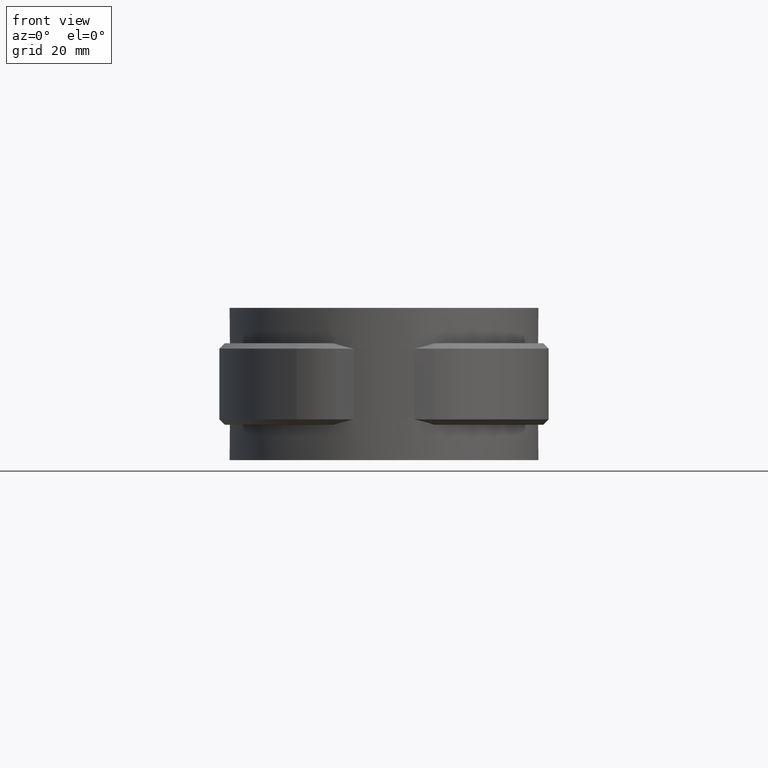
[diagram: clean part render]
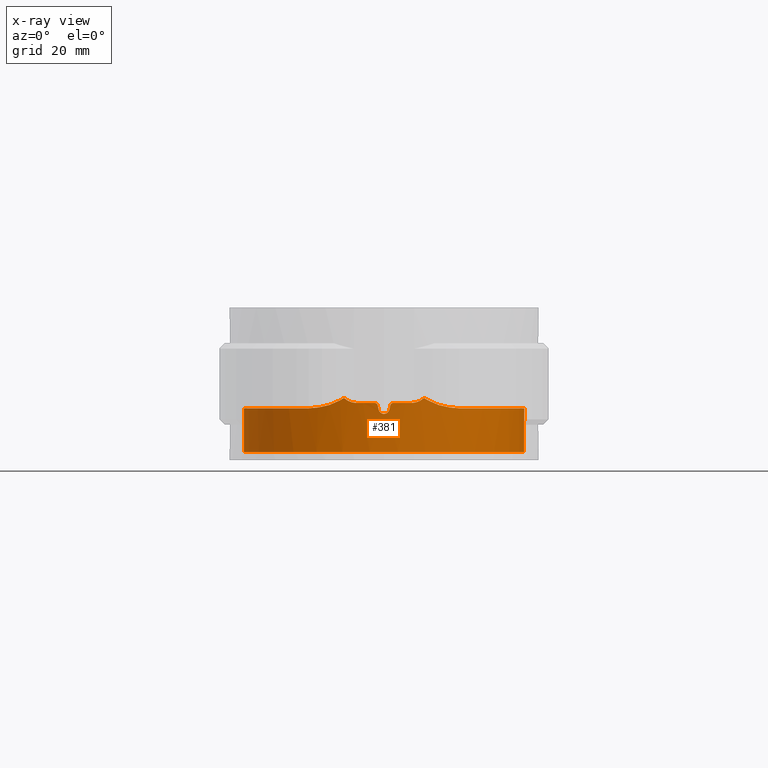
[diagram: x-ray — body ghosted, one internal face saturated and labeled with its STEP entity id]
A machine part, front view, then the same camera in x-ray: the body is ghosted and one INTERNAL B-rep face — a face not visible from any outside direction — is saturated and labeled: STEP entity #381.
In plain terms, the highlighted cylindrical surface (partial cylindrical patch) has radius 25.8 mm, axis along (0, 0, -1).
Its self-contained STEP definition (entity closure, byte-faithful):
#381 = ADVANCED_FACE( '', ( #757 ), #758, .F. );
#757 = FACE_OUTER_BOUND( '', #1569, .T. );
#758 = CYLINDRICAL_SURFACE( '', #1570, 25.8000000000000 );
#1569 = EDGE_LOOP( '', ( #3423, #3424, #3425, #3426, #3427, #3428, #3429, #3430, #3431, #3432, #3433, #3434, #3435, #3436, #3437, #3438, #3439, #3440 ) );
#1570 = AXIS2_PLACEMENT_3D( '', #3441, #3442, #3443 );
#3423 = ORIENTED_EDGE( '', *, *, #7726, .T. );
#3424 = ORIENTED_EDGE( '', *, *, #7694, .T. );
#3425 = ORIENTED_EDGE( '', *, *, #7731, .T. );
#3426 = ORIENTED_EDGE( '', *, *, #7732, .T. );
#3427 = ORIENTED_EDGE( '', *, *, #7733, .T. );
#3428 = ORIENTED_EDGE( '', *, *, #7734, .T. );
#3429 = ORIENTED_EDGE( '', *, *, #7661, .F. );
#3430 = ORIENTED_EDGE( '', *, *, #7735, .F. );
#3431 = ORIENTED_EDGE( '', *, *, #7705, .T. );
#3432 = ORIENTED_EDGE( '', *, *, #7736, .T. );
#3433 = ORIENTED_EDGE( '', *, *, #7737, .T. );
#3434 = ORIENTED_EDGE( '', *, *, #7724, .T. );
#3435 = ORIENTED_EDGE( '', *, *, #7730, .T. );
#3436 = ORIENTED_EDGE( '', *, *, #7738, .T. );
#3437 = ORIENTED_EDGE( '', *, *, #7739, .T. );
#3438 = ORIENTED_EDGE( '', *, *, #7681, .T. );
#3439 = ORIENTED_EDGE( '', *, *, #7740, .T. );
#3440 = ORIENTED_EDGE( '', *, *, #7741, .T. );
#3441 = CARTESIAN_POINT( '', ( 0.000000000000000, 0.000000000000000, 0.000000000000000 ) );
#3442 = DIRECTION( '', ( 0.000000000000000, 0.000000000000000, -1.00000000000000 ) );
#3443 = DIRECTION( '', ( 1.00000000000000, -6.12303176911189E-017, 0.000000000000000 ) );
#7661 = EDGE_CURVE( '', #8682, #8684, #8685, .T. );
#7681 = EDGE_CURVE( '', #8720, #8718, #8721, .T. );
#7694 = EDGE_CURVE( '', #8743, #8741, #8744, .T. );
#7705 = EDGE_CURVE( '', #8763, #8761, #8764, .T. );
#7724 = EDGE_CURVE( '', #8784, #8795, #8797, .T. );
#7726 = EDGE_CURVE( '', #8800, #8743, #8801, .T. );
#7730 = EDGE_CURVE( '', #8795, #8805, #8807, .T. );
#7731 = EDGE_CURVE( '', #8741, #8808, #8809, .T. );
#7732 = EDGE_CURVE( '', #8808, #8810, #8811, .T. );
#7733 = EDGE_CURVE( '', #8810, #8812, #8813, .T. );
#7734 = EDGE_CURVE( '', #8812, #8684, #8814, .T. );
#7735 = EDGE_CURVE( '', #8763, #8682, #8815, .T. );
#7736 = EDGE_CURVE( '', #8761, #8816, #8817, .T. );
#7737 = EDGE_CURVE( '', #8816, #8784, #8818, .F. );
#7738 = EDGE_CURVE( '', #8805, #8819, #8820, .T. );
#7739 = EDGE_CURVE( '', #8819, #8720, #8821, .T. );
#7740 = EDGE_CURVE( '', #8718, #8822, #8823, .T. );
#7741 = EDGE_CURVE( '', #8822, #8800, #8824, .T. );
#8682 = VERTEX_POINT( '', #10492 );
#8684 = VERTEX_POINT( '', #10494 );
#8685 = CIRCLE( '', #10495, 25.8000000000000 );
#8718 = VERTEX_POINT( '', #10571 );
#8720 = VERTEX_POINT( '', #10574 );
#8721 = B_SPLINE_CURVE_WITH_KNOTS( '', 3, ( #10575, #10576, #10577, #10578, #10579, #10580, #10581, #10582, #10583, #10584 ), .UNSPECIFIED., .F., .F., ( 4, 2, 2, 2, 4 ), ( 3.57622406134550E-018, 0.000671617565681639, 0.00134323513136328, 0.00201485269704491, 0.00268647026272655 ), .UNSPECIFIED. );
#8741 = VERTEX_POINT( '', #10622 );
#8743 = VERTEX_POINT( '', #10629 );
#8744 = B_SPLINE_CURVE_WITH_KNOTS( '', 3, ( #10630, #10631, #10632, #10633, #10634, #10635, #10636, #10637, #10638, #10639 ), .UNSPECIFIED., .F., .F., ( 4, 2, 2, 2, 4 ), ( 8.67361737988404E-019, 0.000662730200883658, 0.00132546040176731, 0.00198819060265097, 0.00265092080353463 ), .UNSPECIFIED. );
#8761 = VERTEX_POINT( '', #10749 );
#8763 = VERTEX_POINT( '', #10757 );
#8764 = B_SPLINE_CURVE_WITH_KNOTS( '', 3, ( #10758, #10759, #10760, #10761, #10762, #10763, #10764, #10765, #10766, #10767, #10768, #10769, #10770, #10771, #10772, #10773, #10774, #10775, #10776, #10777, #10778, #10779, #10780, #10781, #10782, #10783, #10784, #10785, #10786, #10787, #10788, #10789, #10790, #10791, #10792, #10793, #10794, #10795, #10796, #10797, #10798, #10799, #10800, #10801, #10802, #10803 ), .UNSPECIFIED., .F., .F., ( 4, 2, 2, 2, 2, 2, 2, 2, 2, 2, 2, 2, 2, 2, 2, 2, 2, 2, 2, 2, 2, 2, 4 ), ( 6.25463444138550E-018, 0.00373618031947293, 0.00747236063894586, 0.00934045079868233, 0.0112085409584188, 0.0149447212778917, 0.0168128114376282, 0.0186809015973647, 0.0224170819168376, 0.0242851720765741, 0.0261532622363106, 0.0298894425557835, 0.0336256228752565, 0.0354937130349930, 0.0373618031947294, 0.0410979835142024, 0.0429660736739389, 0.0448341638336753, 0.0485703441531483, 0.0504384343128848, 0.0523065244726213, 0.0560427047920942, 0.0597788851115672 ), .UNSPECIFIED. );
#8784 = VERTEX_POINT( '', #10899 );
#8795 = VERTEX_POINT( '', #10946 );
#8797 = B_SPLINE_CURVE_WITH_KNOTS( '', 3, ( #10949, #10950, #10951, #10952, #10953, #10954, #10955, #10956, #10957, #10958 ), .UNSPECIFIED., .F., .F., ( 4, 2, 2, 2, 4 ), ( 5.93873657494515E-017, 0.000662843622440353, 0.00132568724488065, 0.00198853086732094, 0.00265137448976123 ), .UNSPECIFIED. );
#8800 = VERTEX_POINT( '', #10961 );
#8801 = CIRCLE( '', #10962, 25.8000000000000 );
#8805 = VERTEX_POINT( '', #10967 );
#8807 = CIRCLE( '', #10970, 25.8000000000000 );
#8808 = VERTEX_POINT( '', #10971 );
#8809 = B_SPLINE_CURVE_WITH_KNOTS( '', 3, ( #10972, #10973, #10974, #10975 ), .UNSPECIFIED., .F., .F., ( 4, 4 ), ( 0.00814114400030240, 0.00902205076331098 ), .UNSPECIFIED. );
#8810 = VERTEX_POINT( '', #10976 );
#8811 = B_SPLINE_CURVE_WITH_KNOTS( '', 3, ( #10977, #10978, #10979, #10980, #10981, #10982, #10983, #10984, #10985, #10986 ), .UNSPECIFIED., .F., .F., ( 4, 2, 2, 2, 4 ), ( 1.90851120178069E-016, 0.00170899834983035, 0.00341799669966050, 0.00512699504949066, 0.00683599339932082 ), .UNSPECIFIED. );
#8812 = VERTEX_POINT( '', #10987 );
#8813 = B_SPLINE_CURVE_WITH_KNOTS( '', 3, ( #10988, #10989, #10990, #10991, #10992, #10993, #10994, #10995, #10996, #10997, #10998, #10999, #11000, #11001, #11002, #11003, #11004, #11005, #11006, #11007, #11008, #11009, #11010, #11011, #11012, #11013, #11014, #11015, #11016, #11017, #11018, #11019, #11020, #11021, #11022, #11023, #11024, #11025, #11026, #11027, #11028, #11029, #11030, #11031, #11032, #11033 ), .UNSPECIFIED., .F., .F., ( 4, 2, 2, 2, 2, 2, 2, 2, 2, 2, 2, 2, 2, 2, 2, 2, 2, 2, 2, 2, 2, 2, 4 ), ( 4.04975273105316E-017, 0.00373617763623481, 0.00747235527246959, 0.00934044409058697, 0.0112085329087043, 0.0149447105449391, 0.0168127993630565, 0.0186808881811738, 0.0224170658174086, 0.0242851546355259, 0.0261532434536433, 0.0298894210898781, 0.0336255987261128, 0.0354936875442302, 0.0373617763623475, 0.0410979539985823, 0.0429660428166996, 0.0448341316348170, 0.0485703092710517, 0.0504383980891691, 0.0523064869072865, 0.0560426645435212, 0.0597788421797559 ), .UNSPECIFIED. );
#8814 = LINE( '', #11034, #11035 );
#8815 = LINE( '', #11036, #11037 );
#8816 = VERTEX_POINT( '', #11038 );
#8817 = B_SPLINE_CURVE_WITH_KNOTS( '', 3, ( #11039, #11040, #11041, #11042, #11043, #11044, #11045, #11046, #11047, #11048 ), .UNSPECIFIED., .F., .F., ( 4, 2, 2, 2, 4 ), ( 3.91371455128689E-017, 0.00171733910747661, 0.00343467821495318, 0.00515201732242975, 0.00686935642990633 ), .UNSPECIFIED. );
#8818 = B_SPLINE_CURVE_WITH_KNOTS( '', 3, ( #11049, #11050, #11051, #11052 ), .UNSPECIFIED., .F., .F., ( 4, 4 ), ( 0.00814114400030613, 0.00902205076331132 ), .UNSPECIFIED. );
#8819 = VERTEX_POINT( '', #11053 );
#8820 = B_SPLINE_CURVE_WITH_KNOTS( '', 3, ( #11054, #11055, #11056, #11057, #11058, #11059 ), .UNSPECIFIED., .F., .F., ( 4, 2, 4 ), ( 6.07153216591883E-018, 0.000336076006616377, 0.000672152013232748 ), .UNSPECIFIED. );
#8821 = ELLIPSE( '', #11060, 117.533393289811, 25.8000000000000 );
#8822 = VERTEX_POINT( '', #11061 );
#8823 = ELLIPSE( '', #11062, 117.533453246341, 25.8000000000000 );
#8824 = B_SPLINE_CURVE_WITH_KNOTS( '', 3, ( #11063, #11064, #11065, #11066, #11067, #11068 ), .UNSPECIFIED., .F., .F., ( 4, 2, 4 ), ( 2.16840434497101E-019, 0.000336081783648433, 0.000672163567296866 ), .UNSPECIFIED. );
#10492 = CARTESIAN_POINT( '', ( -6.03237410071943, 25.0848652120949, -25.0000000000000 ) );
#10494 = CARTESIAN_POINT( '', ( 6.03237410071942, 25.0848652120949, -25.0000000000000 ) );
#10495 = AXIS2_PLACEMENT_3D( '', #14935, #14936, #14937 );
#10571 = CARTESIAN_POINT( '', ( 0.975610000000007, -25.7815473765230, -17.2195120000000 ) );
#10574 = CARTESIAN_POINT( '', ( -0.975609757981845, -25.7815473856813, -17.2195121867475 ) );
#10575 = CARTESIAN_POINT( '', ( -0.975609757981840, -25.7815473856813, -17.2195121867475 ) );
#10576 = CARTESIAN_POINT( '', ( -0.925760723739457, -25.7834337427531, -17.4410633599151 ) );
#10577 = CARTESIAN_POINT( '', ( -0.802002361521337, -25.7881415443926, -17.6390184743020 ) );
#10578 = CARTESIAN_POINT( '', ( -0.447411547054209, -25.7967299285990, -17.9227000099931 ) );
#10579 = CARTESIAN_POINT( '', ( -0.227096393989787, -25.8000000079439, -18.0000001856760 ) );
#10580 = CARTESIAN_POINT( '', ( 0.227098198963309, -25.7999999920561, -17.9999998211909 ) );
#10581 = CARTESIAN_POINT( '', ( 0.447440716005347, -25.7967293170502, -17.9226818997700 ) );
#10582 = CARTESIAN_POINT( '', ( 0.802000802813984, -25.7881414871987, -17.6390148152596 ) );
#10583 = CARTESIAN_POINT( '', ( 0.925761005968252, -25.7834337325418, -17.4410631924777 ) );
#10584 = CARTESIAN_POINT( '', ( 0.975610000000001, -25.7815473765230, -17.2195120000000 ) );
#10622 = CARTESIAN_POINT( '', ( 7.36770156712541, -24.7256339376277, -15.0775937013097 ) );
#10629 = CARTESIAN_POINT( '', ( 4.99999999999994, -25.3108672312902, -16.0000000000000 ) );
#10630 = CARTESIAN_POINT( '', ( 4.99999999999994, -25.3108672312902, -16.0000000000000 ) );
#10631 = CARTESIAN_POINT( '', ( 5.21989235078092, -25.2674289032449, -16.0000000000000 ) );
#10632 = CARTESIAN_POINT( '', ( 5.43572629456836, -25.2218178465942, -15.9794669407196 ) );
#10633 = CARTESIAN_POINT( '', ( 5.85977007718804, -25.1266852266416, -15.8996092436795 ) );
#10634 = CARTESIAN_POINT( '', ( 6.06939735427099, -25.0768017391940, -15.8397037866941 ) );
#10635 = CARTESIAN_POINT( '', ( 6.47434147826884, -24.9753172579177, -15.6817525500323 ) );
#10636 = CARTESIAN_POINT( '', ( 6.66678099318021, -24.9244855967910, -15.5851590338923 ) );
#10637 = CARTESIAN_POINT( '', ( 7.03238793417310, -24.8238085518513, -15.3575801701198 ) );
#10638 = CARTESIAN_POINT( '', ( 7.20649545454457, -24.7736698557924, -15.2256728827549 ) );
#10639 = CARTESIAN_POINT( '', ( 7.36770156712607, -24.7256339376318, -15.0775937013091 ) );
#10749 = CARTESIAN_POINT( '', ( -14.0746045988059, -21.6228005907485, -16.9968379864400 ) );
#10757 = CARTESIAN_POINT( '', ( -6.03237410071942, 25.0848652120949, -16.9957814035266 ) );
#10758 = CARTESIAN_POINT( '', ( -6.03237410071941, 25.0848652120949, -16.9957814035266 ) );
#10759 = CARTESIAN_POINT( '', ( -7.26068028571260, 24.7894838195518, -16.9945516168713 ) );
#10760 = CARTESIAN_POINT( '', ( -8.45213205266303, 24.4080579795106, -16.9929820294267 ) );
#10761 = CARTESIAN_POINT( '', ( -10.7643649610826, 23.4802103387389, -16.9921047737186 ) );
#10762 = CARTESIAN_POINT( '', ( -11.8851383455205, 22.9337704286318, -16.9927895645920 ) );
#10763 = CARTESIAN_POINT( '', ( -13.5121261110203, 21.9876336346415, -16.9946649219742 ) );
#10764 = CARTESIAN_POINT( '', ( -14.0475094696409, 21.6495534350301, -16.9954026334734 ) );
#10765 = CARTESIAN_POINT( '', ( -15.0858771380485, 20.9392453830500, -16.9965548131524 ) );
#10766 = CARTESIAN_POINT( '', ( -15.5893780365250, 20.5669859111848, -16.9969287838810 ) );
#10767 = CARTESIAN_POINT( '', ( -17.0539102108764, 19.4000673881720, -16.9967527453028 ) );
#10768 = CARTESIAN_POINT( '', ( -17.9692068879716, 18.5555254471872, -16.9954355518169 ) );
#10769 = CARTESIAN_POINT( '', ( -19.2504369275995, 17.1886782009989, -16.9943777454587 ) );
#10770 = CARTESIAN_POINT( '', ( -19.6621689044348, 16.7163258541373, -16.9941530445863 ) );
#10771 = CARTESIAN_POINT( '', ( -20.4541782167481, 15.7373132893048, -16.9940990147525 ) );
#10772 = CARTESIAN_POINT( '', ( -20.8336421104671, 15.2312946191079, -16.9942718358809 ) );
#10773 = CARTESIAN_POINT( '', ( -21.9063658924988, 13.6866011422974, -16.9952233639814 ) );
#10774 = CARTESIAN_POINT( '', ( -22.5408267318255, 12.6136228621821, -16.9965313000702 ) );
#10775 = CARTESIAN_POINT( '', ( -23.3737383452074, 10.9405869877108, -16.9969403552182 ) );
#10776 = CARTESIAN_POINT( '', ( -23.6315002028938, 10.3722714708539, -16.9966899618358 ) );
#10777 = CARTESIAN_POINT( '', ( -24.1066988378430, 9.21405928166303, -16.9957718372287 ) );
#10778 = CARTESIAN_POINT( '', ( -24.3245104117547, 8.62301146299955, -16.9951484447633 ) );
#10779 = CARTESIAN_POINT( '', ( -24.9131778138079, 6.82393618580402, -16.9935192547239 ) );
#10780 = CARTESIAN_POINT( '', ( -25.2134222870090, 5.61023799728686, -16.9928984226179 ) );
#10781 = CARTESIAN_POINT( '', ( -25.6366033037461, 3.15531374915431, -16.9936252086487 ) );
#10782 = CARTESIAN_POINT( '', ( -25.7595258191951, 1.91408551083722, -16.9949695112454 ) );
#10783 = CARTESIAN_POINT( '', ( -25.8076201398247, 0.0310831410522764, -16.9964954455601 ) );
#10784 = CARTESIAN_POINT( '', ( -25.8006211446675, -0.602429536608929, -16.9968812272918 ) );
#10785 = CARTESIAN_POINT( '', ( -25.7406884620227, -1.85793710828312, -16.9968025829243 ) );
#10786 = CARTESIAN_POINT( '', ( -25.6879657950527, -2.48147131136125, -16.9964140105426 ) );
#10787 = CARTESIAN_POINT( '', ( -25.4629977867101, -4.33968777006188, -16.9950750310610 ) );
#10788 = CARTESIAN_POINT( '', ( -25.2242963534625, -5.56204767092466, -16.9940573206306 ) );
#10789 = CARTESIAN_POINT( '', ( -24.7326013388371, -7.37080770468106, -16.9938861004003 ) );
#10790 = CARTESIAN_POINT( '', ( -24.5463436228588, -7.96958187379110, -16.9940284836953 ) );
#10791 = CARTESIAN_POINT( '', ( -24.1279280144700, -9.15861944962663, -16.9946400750772 ) );
#10792 = CARTESIAN_POINT( '', ( -23.8965456258034, -9.74615393389850, -16.9951079375750 ) );
#10793 = CARTESIAN_POINT( '', ( -23.1448142253165, -11.4685313738498, -16.9965131909936 ) );
#10794 = CARTESIAN_POINT( '', ( -22.5644432085294, -12.5713524115484, -16.9972219880377 ) );
#10795 = CARTESIAN_POINT( '', ( -21.5769460371601, -14.1585186160504, -16.9959888095858 ) );
#10796 = CARTESIAN_POINT( '', ( -21.2282131341587, -14.6763522786011, -16.9953800085818 ) );
#10797 = CARTESIAN_POINT( '', ( -20.4909914895077, -15.6892197655520, -16.9942918800615 ) );
#10798 = CARTESIAN_POINT( '', ( -20.1012321410511, -16.1857328639174, -16.9938124861793 ) );
#10799 = CARTESIAN_POINT( '', ( -18.8793839121942, -17.6294864025608, -16.9930248483608 ) );
#10800 = CARTESIAN_POINT( '', ( -18.0029635594344, -18.5227607714454, -16.9934964255578 ) );
#10801 = CARTESIAN_POINT( '', ( -16.1299631380105, -20.1748272033478, -16.9955542675048 ) );
#10802 = CARTESIAN_POINT( '', ( -15.1333867818154, -20.9336234178111, -16.9971463859844 ) );
#10803 = CARTESIAN_POINT( '', ( -14.0746045988058, -21.6228005907485, -16.9968379864400 ) );
#10899 = CARTESIAN_POINT( '', ( -7.36770156713658, -24.7256339376287, -15.0775937012996 ) );
#10946 = CARTESIAN_POINT( '', ( -5.00000000000005, -25.3108672312902, -16.0000000000000 ) );
#10949 = CARTESIAN_POINT( '', ( -7.36770156713663, -24.7256339376286, -15.0775937012995 ) );
#10950 = CARTESIAN_POINT( '', ( -7.20646713643109, -24.7736782939748, -15.2256988949402 ) );
#10951 = CARTESIAN_POINT( '', ( -7.03434963495776, -24.8232510247343, -15.3561718065535 ) );
#10952 = CARTESIAN_POINT( '', ( -6.66918322480655, -24.9238412235707, -15.5838487621522 ) );
#10953 = CARTESIAN_POINT( '', ( -6.47476500195093, -24.9752079512120, -15.6815610091113 ) );
#10954 = CARTESIAN_POINT( '', ( -6.06970934103418, -25.0767267112782, -15.8396083889254 ) );
#10955 = CARTESIAN_POINT( '', ( -5.86237481714629, -25.1260785402854, -15.8989576104588 ) );
#10956 = CARTESIAN_POINT( '', ( -5.43813636984578, -25.2212992157871, -15.9791722700036 ) );
#10957 = CARTESIAN_POINT( '', ( -5.21991226861740, -25.2674249686036, -16.0000000000000 ) );
#10958 = CARTESIAN_POINT( '', ( -5.00000000000005, -25.3108672312902, -16.0000000000000 ) );
#10961 = CARTESIAN_POINT( '', ( 1.65000000000001, -25.7471843120758, -16.0000000000000 ) );
#10962 = AXIS2_PLACEMENT_3D( '', #14994, #14995, #14996 );
#10967 = CARTESIAN_POINT( '', ( -1.65000000000006, -25.7471843120758, -16.0000000000000 ) );
#10970 = AXIS2_PLACEMENT_3D( '', #15002, #15003, #15004 );
#10971 = CARTESIAN_POINT( '', ( 8.09912282365075, -24.4957998335918, -15.5190404955413 ) );
#10972 = CARTESIAN_POINT( '', ( 7.36770156713340, -24.7256339376295, -15.0775937012977 ) );
#10973 = CARTESIAN_POINT( '', ( 7.60901589127807, -24.6537275133632, -15.2310764623868 ) );
#10974 = CARTESIAN_POINT( '', ( 7.85316249556968, -24.5771224652437, -15.3776817587934 ) );
#10975 = CARTESIAN_POINT( '', ( 8.09912282365084, -24.4957998335923, -15.5190404955405 ) );
#10976 = CARTESIAN_POINT( '', ( 14.0746045988059, -21.6228005907485, -16.9968379864400 ) );
#10977 = CARTESIAN_POINT( '', ( 8.09912282365077, -24.4957998335920, -15.5190404955408 ) );
#10978 = CARTESIAN_POINT( '', ( 8.57657903642954, -24.3379369943918, -15.8029440521495 ) );
#10979 = CARTESIAN_POINT( '', ( 9.07081284882166, -24.1588846843102, -16.0241664370240 ) );
#10980 = CARTESIAN_POINT( '', ( 10.0733104340239, -23.7583621453148, -16.3900456716514 ) );
#10981 = CARTESIAN_POINT( '', ( 10.5842856105013, -23.5357052720704, -16.5339148702135 ) );
#10982 = CARTESIAN_POINT( '', ( 11.6001945013901, -23.0519416116809, -16.7598620179207 ) );
#10983 = CARTESIAN_POINT( '', ( 12.1055395017182, -22.7908410417145, -16.8420361208029 ) );
#10984 = CARTESIAN_POINT( '', ( 13.1027216568501, -22.2325258843764, -16.9561641792507 ) );
#10985 = CARTESIAN_POINT( '', ( 13.5929789952992, -21.9362979060277, -16.9879353609786 ) );
#10986 = CARTESIAN_POINT( '', ( 14.0746045988058, -21.6228005907485, -16.9968379864400 ) );
#10987 = CARTESIAN_POINT( '', ( 6.03237410071945, 25.0848652120949, -16.9957814035266 ) );
#10988 = CARTESIAN_POINT( '', ( 14.0746045988058, -21.6228005907485, -16.9968379864400 ) );
#10989 = CARTESIAN_POINT( '', ( 15.1333869034552, -20.9336233386340, -16.9971463860198 ) );
#10990 = CARTESIAN_POINT( '', ( 16.1286590915959, -20.1756829817981, -16.9955564866880 ) );
#10991 = CARTESIAN_POINT( '', ( 17.9974199617546, -18.5279438307432, -16.9935017326741 ) );
#10992 = CARTESIAN_POINT( '', ( 18.8708952578264, -17.6381305472235, -16.9930277888043 ) );
#10993 = CARTESIAN_POINT( '', ( 20.0877556595109, -16.2023349188312, -16.9937996838261 ) );
#10994 = CARTESIAN_POINT( '', ( 20.4792375666223, -15.7046653910953, -16.9942760898951 ) );
#10995 = CARTESIAN_POINT( '', ( 21.2202480234852, -14.6879801258783, -16.9953667345407 ) );
#10996 = CARTESIAN_POINT( '', ( 21.5702524945042, -14.1687622732478, -16.9959782666067 ) );
#10997 = CARTESIAN_POINT( '', ( 22.5601732933537, -12.5792308629640, -16.9972209660366 ) );
#10998 = CARTESIAN_POINT( '', ( 23.1403053144642, -11.4772030165014, -16.9965203171197 ) );
#10999 = CARTESIAN_POINT( '', ( 23.8906133537362, -9.76056214387444, -16.9951196678689 ) );
#11000 = CARTESIAN_POINT( '', ( 24.1206574138140, -9.17770784552324, -16.9946534073799 ) );
#11001 = CARTESIAN_POINT( '', ( 24.5396280094886, -7.99018726490688, -16.9940356838704 ) );
#11002 = CARTESIAN_POINT( '', ( 24.7280028918479, -7.38639645245480, -16.9938875340694 ) );
#11003 = CARTESIAN_POINT( '', ( 25.2223318830471, -5.57188412206548, -16.9940506683642 ) );
#11004 = CARTESIAN_POINT( '', ( 25.4614001083746, -4.34850014713752, -16.9950670666204 ) );
#11005 = CARTESIAN_POINT( '', ( 25.6868025741090, -2.49324302282107, -16.9964063248678 ) );
#11006 = CARTESIAN_POINT( '', ( 25.7396484485914, -1.87144706959031, -16.9967955923273 ) );
#11007 = CARTESIAN_POINT( '', ( 25.8001195905802, -0.621003625682403, -16.9968860523009 ) );
#11008 = CARTESIAN_POINT( '', ( 25.8077131099012, 0.00885291084437304, -16.9965108803885 ) );
#11009 = CARTESIAN_POINT( '', ( 25.7607831144393, 1.90120768954981, -16.9949849919043 ) );
#11010 = CARTESIAN_POINT( '', ( 25.6378177513320, 3.14543096940040, -16.9936325414361 ) );
#11011 = CARTESIAN_POINT( '', ( 25.2155828913344, 5.60051912629715, -16.9928969279994 ) );
#11012 = CARTESIAN_POINT( '', ( 24.9162994156386, 6.81138135822005, -16.9935111569677 ) );
#11013 = CARTESIAN_POINT( '', ( 24.3318565661995, 8.60203343321270, -16.9951278488325 ) );
#11014 = CARTESIAN_POINT( '', ( 24.1133831145785, 9.19672379235800, -16.9957552893373 ) );
#11015 = CARTESIAN_POINT( '', ( 23.6369981620120, 10.3598885916987, -16.9966828807508 ) );
#11016 = CARTESIAN_POINT( '', ( 23.3787710228885, 10.9298834678380, -16.9969394997502 ) );
#11017 = CARTESIAN_POINT( '', ( 22.5452790238145, 12.6058534968097, -16.9965400547880 ) );
#11018 = CARTESIAN_POINT( '', ( 21.9115063398552, 13.6779892503443, -16.9952325228629 ) );
#11019 = CARTESIAN_POINT( '', ( 20.8431886127966, 15.2181425757185, -16.9942780431472 ) );
#11020 = CARTESIAN_POINT( '', ( 20.4673975881742, 15.7201417254844, -16.9941023636962 ) );
#11021 = CARTESIAN_POINT( '', ( 19.6754052329039, 16.7007679111690, -16.9941480304498 ) );
#11022 = CARTESIAN_POINT( '', ( 19.2608462862722, 17.1770838694947, -16.9943707251669 ) );
#11023 = CARTESIAN_POINT( '', ( 17.9763559965235, 18.5488615493912, -16.9954265524304 ) );
#11024 = CARTESIAN_POINT( '', ( 17.0605686434363, 19.3940711707312, -16.9967439573824 ) );
#11025 = CARTESIAN_POINT( '', ( 15.5991114250348, 20.5595713112542, -16.9969315543514 ) );
#11026 = CARTESIAN_POINT( '', ( 15.0972718058432, 20.9309515522717, -16.9965646889967 ) );
#11027 = CARTESIAN_POINT( '', ( 14.0637517181760, 21.6389287274707, -16.9954233509386 ) );
#11028 = CARTESIAN_POINT( '', ( 13.5303795565577, 21.9764945305707, -16.9946881149649 ) );
#11029 = CARTESIAN_POINT( '', ( 11.8960292207845, 22.9284630964465, -16.9927979045105 ) );
#11030 = CARTESIAN_POINT( '', ( 10.7713225565966, 23.4771799165608, -16.9921044489725 ) );
#11031 = CARTESIAN_POINT( '', ( 8.45364679338602, 24.4076877713864, -16.9929791482341 ) );
#11032 = CARTESIAN_POINT( '', ( 7.26067979377369, 24.7894839378525, -16.9945516173638 ) );
#11033 = CARTESIAN_POINT( '', ( 6.03237410071943, 25.0848652120949, -16.9957814035266 ) );
#11034 = CARTESIAN_POINT( '', ( 6.03237410071943, 25.0848652120949, 0.000000000000000 ) );
#11035 = VECTOR( '', #15005, 1000.00000000000 );
#11036 = CARTESIAN_POINT( '', ( -6.03237410071944, 25.0848652120949, 0.000000000000000 ) );
#11037 = VECTOR( '', #15006, 1000.00000000000 );
#11038 = CARTESIAN_POINT( '', ( -8.09912282365080, -24.4957998335916, -15.5190404955418 ) );
#11039 = CARTESIAN_POINT( '', ( -14.0746045988058, -21.6228005907485, -16.9968379864400 ) );
#11040 = CARTESIAN_POINT( '', ( -13.5933316659828, -21.9360683474003, -16.9879418799323 ) );
#11041 = CARTESIAN_POINT( '', ( -13.1039277943612, -22.2317738655920, -16.9562149525209 ) );
#11042 = CARTESIAN_POINT( '', ( -12.1096078854509, -22.7886394879395, -16.8425885577342 ) );
#11043 = CARTESIAN_POINT( '', ( -11.6033085274296, -23.0503512025027, -16.7603931339338 ) );
#11044 = CARTESIAN_POINT( '', ( -10.5891936704272, -23.5334748125223, -16.5351666648547 ) );
#11045 = CARTESIAN_POINT( '', ( -10.0777407759014, -23.7565423147444, -16.3915451306677 ) );
#11046 = CARTESIAN_POINT( '', ( -9.07045988660657, -24.1590752998531, -16.0241546152633 ) );
#11047 = CARTESIAN_POINT( '', ( -8.57539099517001, -24.3383298001851, -15.8022376226800 ) );
#11048 = CARTESIAN_POINT( '', ( -8.09912282365083, -24.4957998335922, -15.5190404955406 ) );
#11049 = CARTESIAN_POINT( '', ( -7.36770156713647, -24.7256339376286, -15.0775937012997 ) );
#11050 = CARTESIAN_POINT( '', ( -7.60901589128023, -24.6537275133625, -15.2310764623881 ) );
#11051 = CARTESIAN_POINT( '', ( -7.85316249557063, -24.5771224652434, -15.3776817587940 ) );
#11052 = CARTESIAN_POINT( '', ( -8.09912282365084, -24.4957998335923, -15.5190404955405 ) );
#11053 = CARTESIAN_POINT( '', ( -1.16219499999999, -25.7738104047883, -16.3902440000000 ) );
#11054 = CARTESIAN_POINT( '', ( -1.65000000000006, -25.7471843120758, -15.9999999999999 ) );
#11055 = CARTESIAN_POINT( '', ( -1.53659676879315, -25.7544517215611, -15.9999999995132 ) );
#11056 = CARTESIAN_POINT( '', ( -1.42648268482787, -25.7606877134254, -16.0385595407845 ) );
#11057 = CARTESIAN_POINT( '', ( -1.24913421574478, -25.7698961586925, -16.1803221214449 ) );
#11058 = CARTESIAN_POINT( '', ( -1.18713939444586, -25.7726856098881, -16.2793800224631 ) );
#11059 = CARTESIAN_POINT( '', ( -1.16219499999998, -25.7738104047883, -16.3902440000000 ) );
#11060 = AXIS2_PLACEMENT_3D( '', #15007, #15008, #15009 );
#11061 = CARTESIAN_POINT( '', ( 1.16219512100909, -25.7738103993318, -16.3902439066263 ) );
#11062 = AXIS2_PLACEMENT_3D( '', #15010, #15011, #15012 );
#11063 = CARTESIAN_POINT( '', ( 1.16219512100909, -25.7738103993318, -16.3902439066263 ) );
#11064 = CARTESIAN_POINT( '', ( 1.18713950714714, -25.7726856046888, -16.2793799637913 ) );
#11065 = CARTESIAN_POINT( '', ( 1.24912830462551, -25.7698964565163, -16.1803278928054 ) );
#11066 = CARTESIAN_POINT( '', ( 1.42648332301455, -25.7606876893872, -16.0385580563277 ) );
#11067 = CARTESIAN_POINT( '', ( 1.53659680002681, -25.7544517195595, -16.0000000000000 ) );
#11068 = CARTESIAN_POINT( '', ( 1.65000000000001, -25.7471843120758, -16.0000000000000 ) );
#14935 = CARTESIAN_POINT( '', ( 0.000000000000000, 0.000000000000000, -25.0000000000000 ) );
#14936 = DIRECTION( '', ( 0.000000000000000, 0.000000000000000, 1.00000000000000 ) );
#14937 = DIRECTION( '', ( 1.00000000000000, 0.000000000000000, 0.000000000000000 ) );
#14994 = CARTESIAN_POINT( '', ( 0.000000000000000, 0.000000000000000, -16.0000000000000 ) );
#14995 = DIRECTION( '', ( -1.91739769892429E-032, 3.13145149531439E-016, 1.00000000000000 ) );
#14996 = DIRECTION( '', ( 0.000000000000000, -1.00000000000000, 3.13145149531439E-016 ) );
#15002 = CARTESIAN_POINT( '', ( 0.000000000000000, 0.000000000000000, -16.0000000000000 ) );
#15003 = DIRECTION( '', ( -1.91739769892429E-032, 3.13145149531439E-016, 1.00000000000000 ) );
#15004 = DIRECTION( '', ( 0.000000000000000, -1.00000000000000, 3.13145149531439E-016 ) );
#15005 = DIRECTION( '', ( 0.000000000000000, 0.000000000000000, -1.00000000000000 ) );
#15006 = DIRECTION( '', ( 0.000000000000000, 0.000000000000000, -1.00000000000000 ) );
#15007 = CARTESIAN_POINT( '', ( 0.000000000000000, 0.000000000000000, -21.5555578794501 ) );
#15008 = DIRECTION( '', ( 0.975609781292650, 1.70596433957385E-016, 0.219512083143750 ) );
#15009 = DIRECTION( '', ( -0.219512083143750, -3.83841770684827E-017, 0.975609781292650 ) );
#15010 = CARTESIAN_POINT( '', ( 0.000000000000000, 0.000000000000000, -21.5555610922364 ) );
#15011 = DIRECTION( '', ( -0.975609806487721, -3.31181834532552E-017, 0.219511971165564 ) );
#15012 = DIRECTION( '', ( 0.219511971165564, 7.45158328965435E-018, 0.975609806487721 ) );